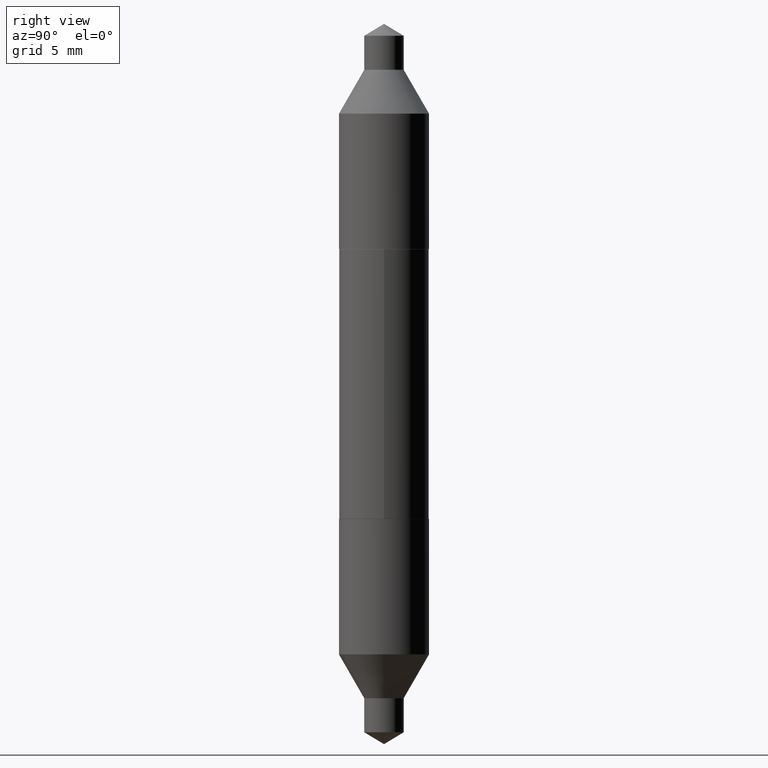
[diagram: clean part render]
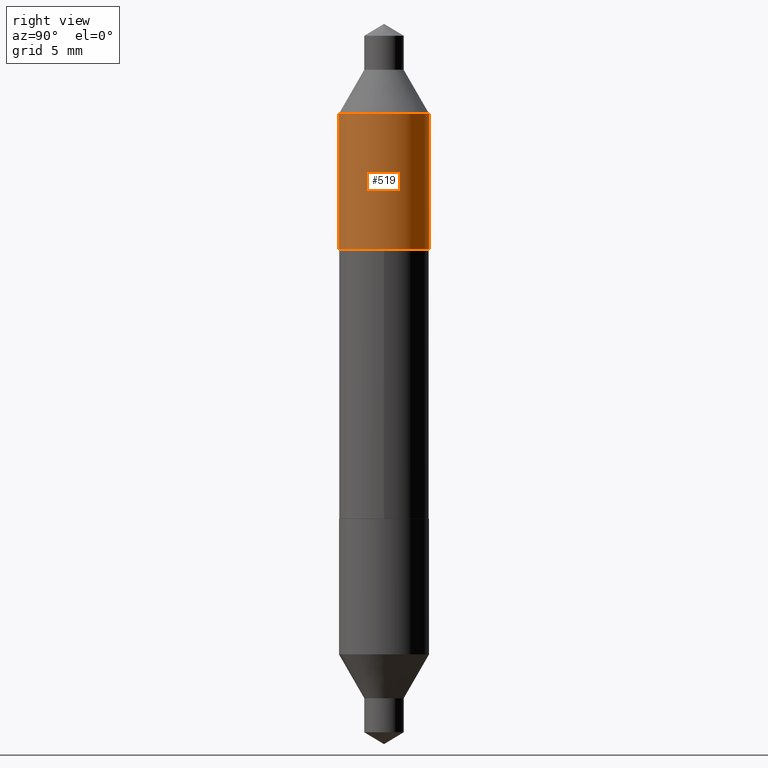
[diagram: same view with one face highlighted and labeled with its STEP entity id]
A machine part, right view. The second image highlights one B-rep face of the part: STEP entity #519.
In plain terms, the highlighted cylindrical surface (partial cylindrical patch) has radius 3.175 mm, axis along (0, -0, -1).
Its self-contained STEP definition (entity closure, byte-faithful):
#29 = CARTESIAN_POINT ( 'NONE',  ( -1.832805450914712624E-29, 2.626319554908296624E-15, 0.7508368282279060946 ) ) ;
#43 = VECTOR ( 'NONE', #304, 39.37007874015748143 ) ;
#46 = AXIS2_PLACEMENT_3D ( 'NONE', #511, #561, #174 ) ;
#48 = DIRECTION ( 'NONE',  ( -2.436575076777671012E-29, 3.504217665554278126E-15, 1.000000000000000000 ) ) ;
#50 = EDGE_CURVE ( 'NONE', #473, #602, #667, .T. ) ;
#63 = CARTESIAN_POINT ( 'NONE',  ( -8.728703347107924107E-16, -0.1249999999999986816, 0.3750000000000003886 ) ) ;
#65 = CYLINDRICAL_SURFACE ( 'NONE', #46, 0.1250000000000000278 ) ;
#71 = EDGE_CURVE ( 'NONE', #293, #602, #398, .T. ) ;
#113 = ORIENTED_EDGE ( 'NONE', *, *, #589, .F. ) ;
#115 = CARTESIAN_POINT ( 'NONE',  ( 8.575622497214323734E-16, 0.1250000000000013600, 0.3749999999999995559 ) ) ;
#130 = AXIS2_PLACEMENT_3D ( 'NONE', #29, #391, #569 ) ;
#174 = DIRECTION ( 'NONE',  ( -6.982962677686265922E-15, -1.000000000000000000, 3.278217592397115073E-15 ) ) ;
#203 = AXIS2_PLACEMENT_3D ( 'NONE', #581, #48, #209 ) ;
#209 = DIRECTION ( 'NONE',  ( -6.982962677686265922E-15, -1.000000000000000000, 3.278217592397115862E-15 ) ) ;
#222 = ORIENTED_EDGE ( 'NONE', *, *, #699, .T. ) ;
#240 = CARTESIAN_POINT ( 'NONE',  ( -8.728703347108020743E-16, -0.1249999999999974326, 0.7508368282279065387 ) ) ;
#251 = LINE ( 'NONE', #682, #43 ) ;
#293 = VERTEX_POINT ( 'NONE', #516 ) ;
#304 = DIRECTION ( 'NONE',  ( 2.436575076777671012E-29, -3.504217665554278126E-15, -1.000000000000000000 ) ) ;
#336 = DIRECTION ( 'NONE',  ( 2.436575076777671012E-29, -3.504217665554278126E-15, -1.000000000000000000 ) ) ;
#391 = DIRECTION ( 'NONE',  ( -2.436575076777671012E-29, 3.504217665554278126E-15, 1.000000000000000000 ) ) ;
#398 = LINE ( 'NONE', #115, #608 ) ;
#456 = CARTESIAN_POINT ( 'NONE',  ( 8.575622497214277388E-16, 0.1250000000000013045, 0.3749999999999995559 ) ) ;
#473 = VERTEX_POINT ( 'NONE', #63 ) ;
#511 = CARTESIAN_POINT ( 'NONE',  ( -9.170508023194260837E-30, 1.309305502066179347E-15, 0.3749999999999999445 ) ) ;
#516 = CARTESIAN_POINT ( 'NONE',  ( 8.575622497214326692E-16, 0.1250000000000027200, 0.7508368282279057615 ) ) ;
#519 = ADVANCED_FACE ( 'NONE', ( #607 ), #65, .T. ) ;
#538 = EDGE_LOOP ( 'NONE', ( #590, #113, #222, #639 ) ) ;
#561 = DIRECTION ( 'NONE',  ( 2.436575076777671012E-29, -3.504217665554278126E-15, -1.000000000000000000 ) ) ;
#569 = DIRECTION ( 'NONE',  ( -6.982962677686266711E-15, -1.000000000000000000, 3.278217592397114284E-15 ) ) ;
#581 = CARTESIAN_POINT ( 'NONE',  ( -9.170508023194260837E-30, 1.309305502066179347E-15, 0.3749999999999999445 ) ) ;
#589 = EDGE_CURVE ( 'NONE', #594, #293, #676, .T. ) ;
#590 = ORIENTED_EDGE ( 'NONE', *, *, #71, .F. ) ;
#594 = VERTEX_POINT ( 'NONE', #240 ) ;
#602 = VERTEX_POINT ( 'NONE', #456 ) ;
#607 = FACE_OUTER_BOUND ( 'NONE', #538, .T. ) ;
#608 = VECTOR ( 'NONE', #336, 39.37007874015748143 ) ;
#639 = ORIENTED_EDGE ( 'NONE', *, *, #50, .T. ) ;
#667 = CIRCLE ( 'NONE', #203, 0.1250000000000000000 ) ;
#676 = CIRCLE ( 'NONE', #130, 0.1250000000000000555 ) ;
#682 = CARTESIAN_POINT ( 'NONE',  ( -8.728703347107927065E-16, -0.1249999999999987232, 0.3750000000000003886 ) ) ;
#699 = EDGE_CURVE ( 'NONE', #594, #473, #251, .T. ) ;